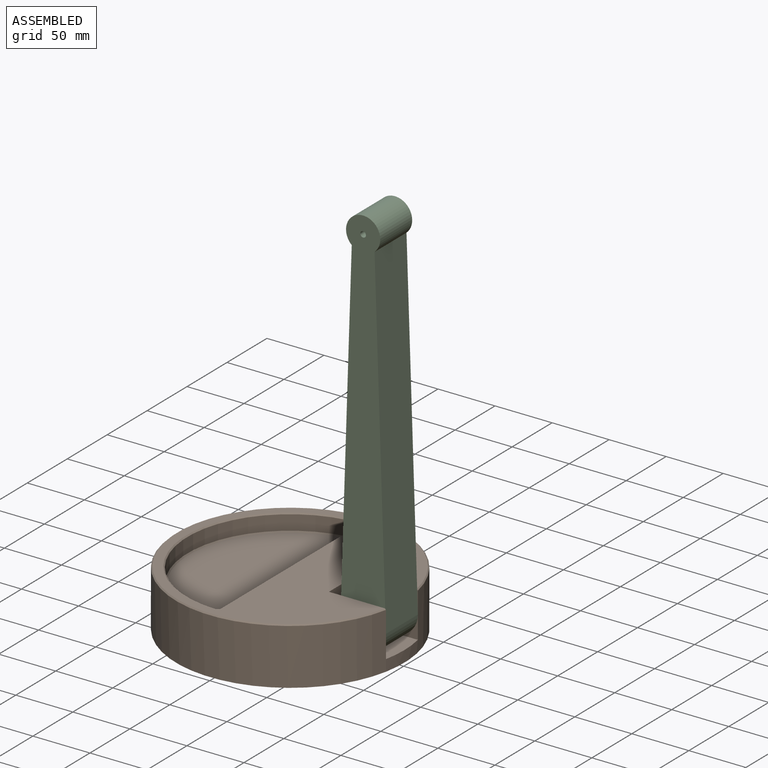
[diagram: assembled view]
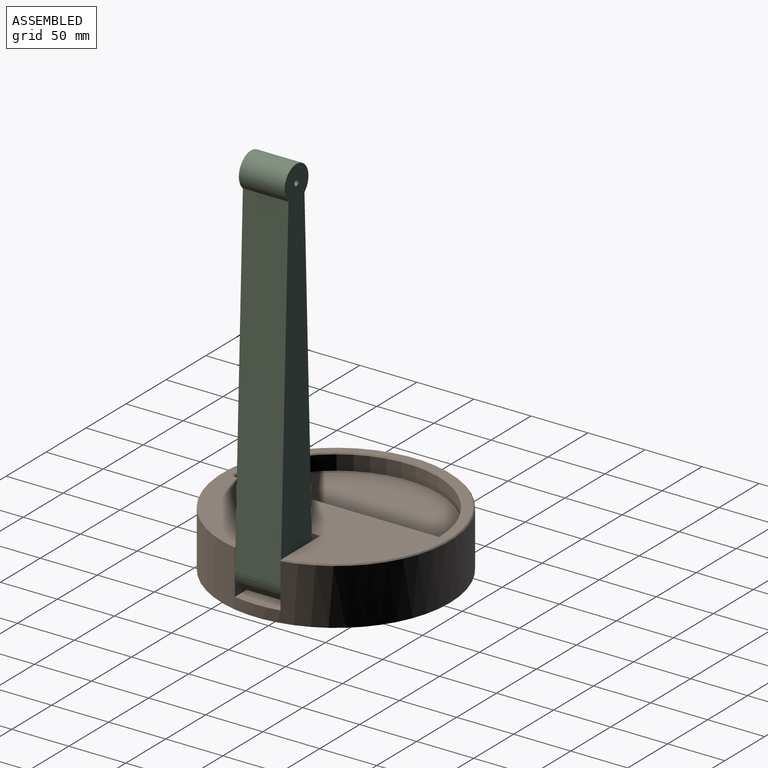
[diagram: assembled view, second angle]
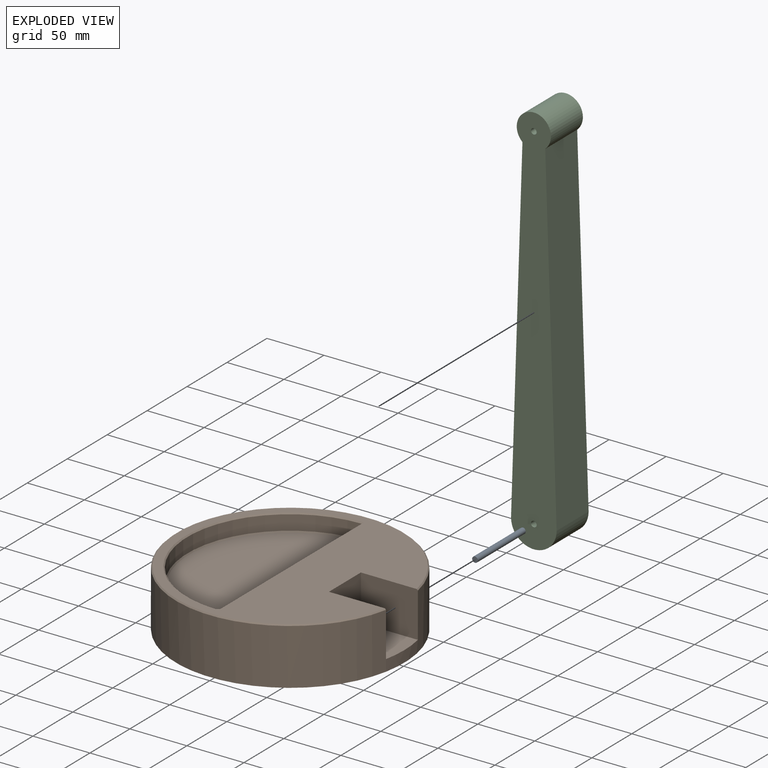
[diagram: exploded view]
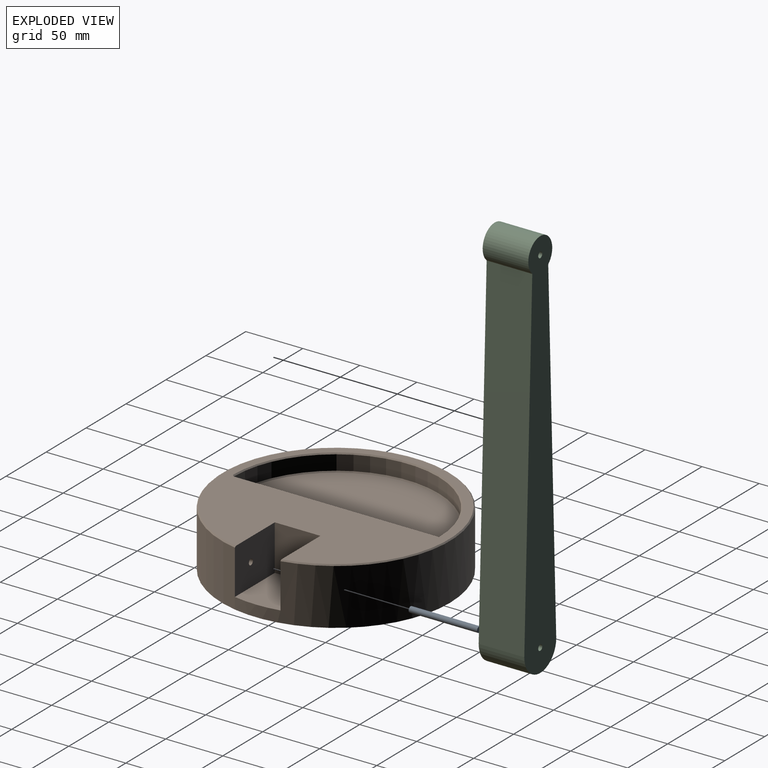
[diagram: exploded view, second angle]
ASSEMBLY  parts=3 mates=2
PART A: 3 faces, bbox 5x60x5 mm
  f0: cylinder r=2.5mm len=60mm, axis (0,1,0), area 942.5mm2, adj f1,f2
  f1: plane 5x5mm, normal (0,-1,0), area 19.6mm2, adj f0
  f2: plane 5x5mm, normal (0,1,0), area 19.6mm2, adj f0
PART B: 20 faces, bbox 200x200x50 mm
  f0: plane 198x195.96mm, normal (0,0,1), area 15589.3mm2, adj f3,f4,f5,f12,f15,f16,f18
  f1: cylinder r=100mm len=200mm, axis (0,0,-1), area 29217mm2, adj f2,f3,f4,f6,f12
  f2: plane 200x200mm, normal (0,0,-1), area 31415.9mm2, adj f1
  f3: plane 50x40mm, normal (1,0,0), area 1979.9mm2, adj f0,f1,f5,f6,f11,f12
  f4: plane 50x40mm, normal (-1,0,0), area 1999.5mm2, adj f0,f1,f5,f6,f12
  f5: plane 40x40mm, normal (0,-1,0), area 1600mm2, adj f0,f3,f4,f6
  f6: plane 52.02x40mm, normal (0,0,1), area 2054mm2, adj f1,f3,f4,f5
  f7: cylinder r=90mm len=179.99mm, axis (0,0,1), area 3662.5mm2, adj f8,f13,f16,f19
  f8: plane 178.99x13mm, normal (0,1,0), area 2326.9mm2, adj f7,f14,f15,f19
  f9: plane 177.99x88mm, normal (0,0,1), area 12264.3mm2, adj f13,f14
  f10: cone r=0mm half-angle=59deg, axis (1,0,0), area 22.9mm2, adj f11
  f11: cylinder r=2.5mm len=10mm, axis (1,0,0), area 157.1mm2, adj f3,f10
  f12: cone r=99mm half-angle=45deg, axis (0,0,-1), area 827.2mm2, adj f0,f1,f3,f4
  f13: cone r=89mm half-angle=45deg, axis (0,0,1), area 395.5mm2, adj f7,f9,f14,f17
  f14: plane 179x1mm, normal (0,0.71,0.71), area 252.4mm2, adj f8,f9,f13,f17
  f15: plane 179.99x1mm, normal (0,0.71,0.71), area 253.8mm2, adj f0,f8,f16,f18
  f16: cone r=90mm half-angle=45deg, axis (0,0,1), area 401.3mm2, adj f0,f7,f15,f18
  f17: plane 1.01x1mm, normal (0.58,0.58,0.58), area 0.9mm2, adj f13,f14,f19
  f18: plane 2.02x2mm, normal (0.58,0.58,0.58), area 2.6mm2, adj f0,f15,f16,f19
  f19: plane 13x1.01mm, normal (0.71,0.7,0), area 18.5mm2, adj f7,f8,f17,f18
PART C: 8 faces, bbox 40x40x346.2 mm
  f0: plane 300x40mm, normal (-1,0,0.03), area 12006.7mm2, adj f2,f3,f4,f5
  f1: plane 300x40mm, normal (1,0,0.03), area 12006.7mm2, adj f2,f3,f4,f5
  f2: plane 346.18x40mm, normal (0,-1,0), area 10243.5mm2, adj f0,f1,f4,f5,f6,f7
  f3: plane 346.18x40mm, normal (0,1,0), area 10243.5mm2, adj f0,f1,f4,f5,f6,f7
  f4: cylinder r=15mm len=40mm, axis (0,-1,0), area 2894.2mm2, adj f0,f1,f2,f3
  f5: cylinder r=20mm len=40mm, axis (0,-1,0), area 2513.3mm2, adj f0,f1,f2,f3
  f6: cylinder r=2.5mm len=40mm, axis (0,-1,0), area 628.3mm2, adj f2,f3
  f7: cylinder r=2.5mm len=40mm, axis (0,-1,0), area 628.3mm2, adj f2,f3
PLACE A t=(-216.59,-227.01,30.19)mm
PLACE B rot(axis=(0,0,1),90deg) t=(-294.57,-257.01,0.19)mm
PLACE C t=(-236.59,-237.01,30.19)mm
MATE revolute B.f10 <-> A.f0  axis (0,1,0) through (-216.59,-287.01,30.19)mm
MATE revolute C.f5 <-> B.f10  axis (0,-1,0) through (-216.59,-277.01,30.19)mm
